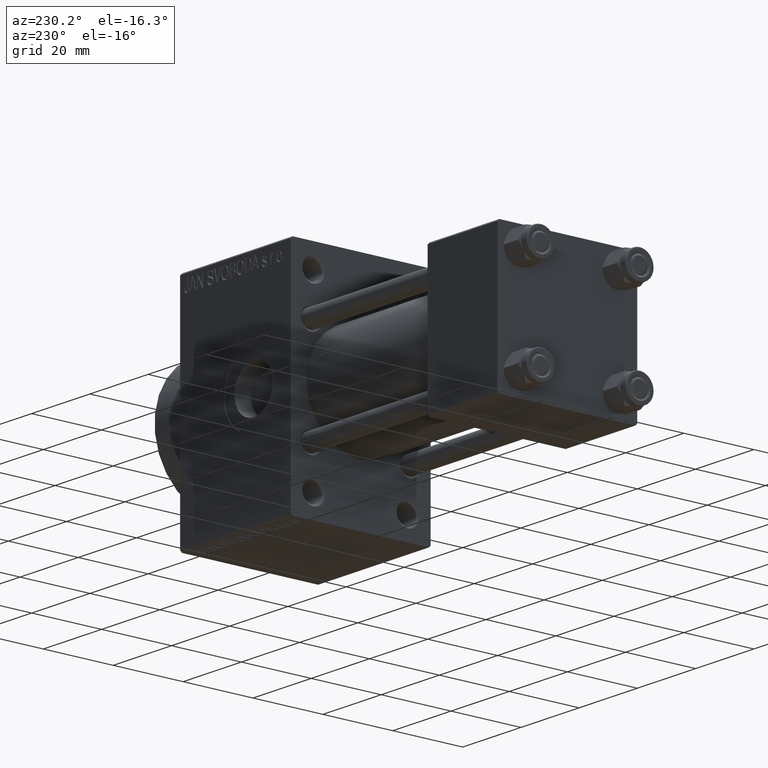
[diagram: clean part render]
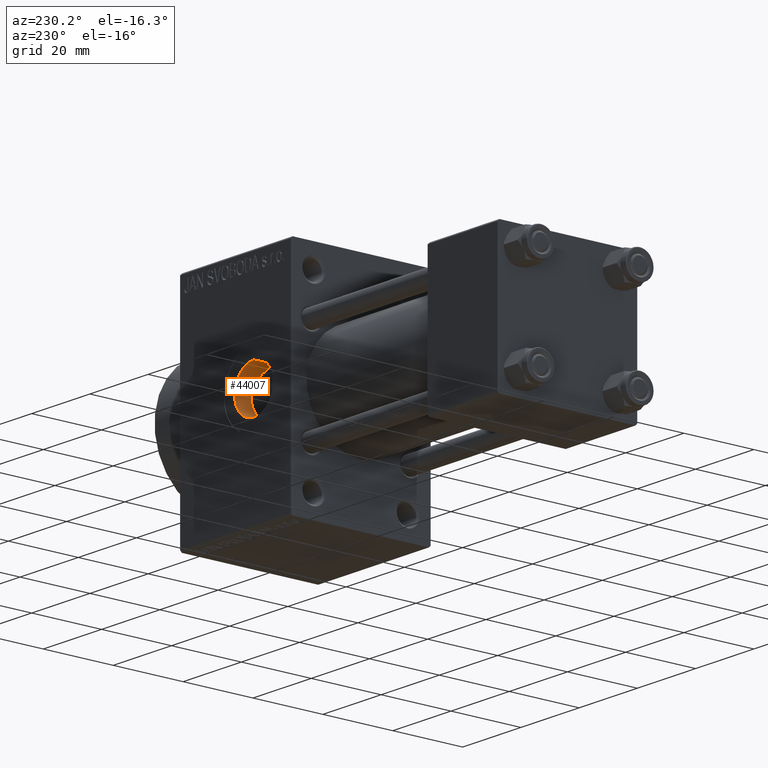
[diagram: same view with one face highlighted and labeled with its STEP entity id]
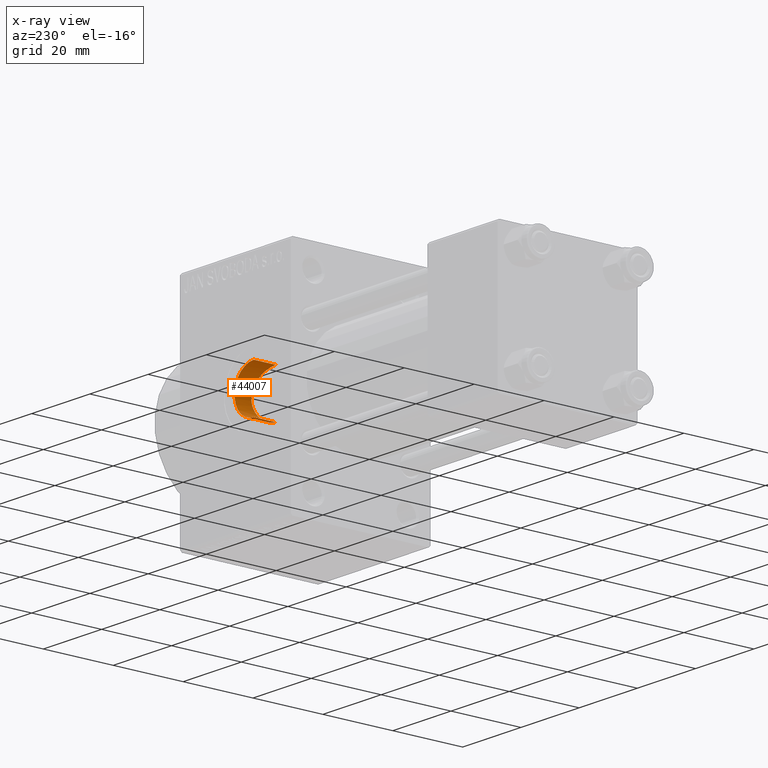
[diagram: x-ray of the same camera — body ghosted, the highlighted face saturated]
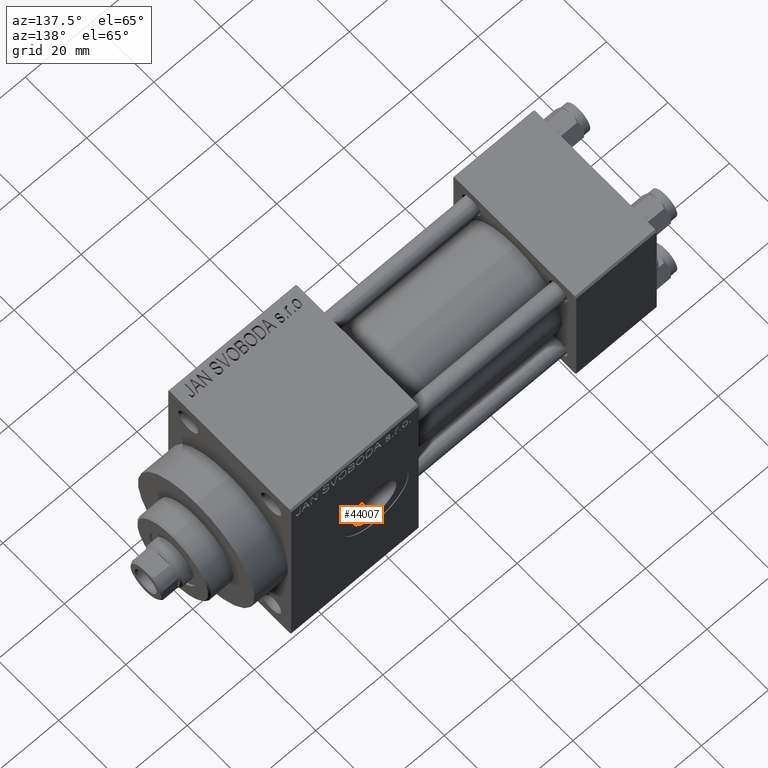
[diagram: same view with one face highlighted and labeled with its STEP entity id]
A machine part, auxiliary view. The second image highlights one B-rep face of the part: STEP entity #44007.
The next image is the same camera in x-ray: the body ghosted, the highlighted face saturated — about 0% of this face is hidden behind the body in this view.
A second angle (auxiliary view) of the same face is appended — the face is thin or edge-on in the first view.
In plain terms, the highlighted cylindrical surface (edge-blend (fillet) strip) has radius 6.58 mm, axis along (0, 1, 0).
Its self-contained STEP definition (entity closure, byte-faithful):
#2212 = CARTESIAN_POINT ( 'NONE',  ( 89.90496100315004924, 14.71561861235558055, 2.934527236680509965 ) ) ;
#2631 = CARTESIAN_POINT ( 'NONE',  ( 84.00000000000001421, 13.47974777212020747, 6.580000000001541061 ) ) ;
#2679 = CARTESIAN_POINT ( 'NONE',  ( 90.58012121813143835, 15.00005317434620622, -0.2142933741436109929 ) ) ;
#2910 = CARTESIAN_POINT ( 'NONE',  ( 89.70288243394014671, 14.63479585642867598, 3.310293569520521562 ) ) ;
#3144 = CARTESIAN_POINT ( 'NONE',  ( 88.94767122397709613, 14.35626376569894980, -4.358576204425606448 ) ) ;
#4795 = CARTESIAN_POINT ( 'NONE',  ( 84.00000000000000000, 19.80000000000000071, -6.580000000001541061 ) ) ;
#6013 = CARTESIAN_POINT ( 'NONE',  ( 86.92351769146507934, 13.79190775013002401, -5.898758844509866428 ) ) ;
#6247 = CARTESIAN_POINT ( 'NONE',  ( 90.35400523561561670, 14.90213545262838934, 1.723442878131194567 ) ) ;
#6712 = CARTESIAN_POINT ( 'NONE',  ( 89.22296890531409019, 14.45456171034981629, -4.024795089579184193 ) ) ;
#7125 = VECTOR ( 'NONE', #9628, 1000.000000000000000 ) ;
#7596 = VERTEX_POINT ( 'NONE', #26524 ) ;
#7741 = ORIENTED_EDGE ( 'NONE', *, *, #13700, .T. ) ;
#9593 = CARTESIAN_POINT ( 'NONE',  ( 90.57975445926895475, 14.99989228947896258, 0.4396576369082871860 ) ) ;
#9628 = DIRECTION ( 'NONE',  ( -0.000000000000000000, 1.000000000000000000, -0.000000000000000000 ) ) ;
#10066 = CARTESIAN_POINT ( 'NONE',  ( 84.87316574373073763, 13.50139811867472694, 6.536143893247988501 ) ) ;
#10647 = VERTEX_POINT ( 'NONE', #15269 ) ;
#11207 = ORIENTED_EDGE ( 'NONE', *, *, #39733, .F. ) ;
#12103 = VECTOR ( 'NONE', #13874, 1000.000000000000000 ) ;
#12939 = DIRECTION ( 'NONE',  ( 0.000000000000000000, 1.000000000000000000, 0.000000000000000000 ) ) ;
#13172 = CARTESIAN_POINT ( 'NONE',  ( 90.15299919069009604, 14.81746657544780987, 2.341560291187981591 ) ) ;
#13638 = CARTESIAN_POINT ( 'NONE',  ( 85.72738229337633697, 13.58322368116233925, -6.364371117436304459 ) ) ;
#13700 = EDGE_CURVE ( 'NONE', #7596, #27573, #28994, .T. ) ;
#13874 = DIRECTION ( 'NONE',  ( -0.000000000000000000, 1.000000000000000000, -0.000000000000000000 ) ) ;
#13882 = DIRECTION ( 'NONE',  ( -0.000000000000000000, 1.000000000000000000, -0.000000000000000000 ) ) ;
#14096 = CARTESIAN_POINT ( 'NONE',  ( 84.00000000000000000, 13.47974777212020570, -6.580000000001541061 ) ) ;
#15269 = CARTESIAN_POINT ( 'NONE',  ( 84.00000000000000000, 13.47974777212020570, -6.580000000001541061 ) ) ;
#16727 = CARTESIAN_POINT ( 'NONE',  ( 90.56927314805744800, 14.99528481447028838, -0.4348723903636226851 ) ) ;
#16961 = CARTESIAN_POINT ( 'NONE',  ( 84.86672476049650982, 13.50078989524231510, -6.537419788989380365 ) ) ;
#17420 = CARTESIAN_POINT ( 'NONE',  ( 90.40804349032906373, 14.92531832247587431, 1.510180672733651086 ) ) ;
#17423 = LINE ( 'NONE', #28833, #12103 ) ;
#17657 = CARTESIAN_POINT ( 'NONE',  ( 88.34571810031602013, 14.16206893639012421, 4.945350623308212512 ) ) ;
#17668 = CYLINDRICAL_SURFACE ( 'NONE', #46250, 6.580000000001541061 ) ;
#20516 = CARTESIAN_POINT ( 'NONE',  ( 87.30108931628336677, 13.87684958374441280, -5.696061878518563049 ) ) ;
#20747 = CARTESIAN_POINT ( 'NONE',  ( 88.50269527074252096, 14.21118671985590609, 4.802809199701820297 ) ) ;
#20979 = CARTESIAN_POINT ( 'NONE',  ( 84.00000000000001421, 13.47974777212020747, 6.580000000001541061 ) ) ;
#21207 = CARTESIAN_POINT ( 'NONE',  ( 89.22411835450492390, 14.45495742940372175, 4.023617649563258070 ) ) ;
#24091 = CARTESIAN_POINT ( 'NONE',  ( 88.01682385340173198, 14.06462955860938990, 5.216021925338526266 ) ) ;
#24570 = CARTESIAN_POINT ( 'NONE',  ( 84.00000000000000000, -18.61105048083429736, 0.000000000000000000 ) ) ;
#25018 = CARTESIAN_POINT ( 'NONE',  ( 90.52575784058851127, 14.97627231213753163, -0.8711763860932838499 ) ) ;
#26524 = CARTESIAN_POINT ( 'NONE',  ( 84.00000000000000000, 19.80000000000000071, 6.580000000001541061 ) ) ;
#27573 = VERTEX_POINT ( 'NONE', #4795 ) ;
#27668 = CARTESIAN_POINT ( 'NONE',  ( 89.90247971339006483, 14.71460193619355294, -2.940356773720275818 ) ) ;
#28371 = CARTESIAN_POINT ( 'NONE',  ( 84.44091709312753835, 13.47974777212020925, 6.580000000001541949 ) ) ;
#28833 = CARTESIAN_POINT ( 'NONE',  ( 84.00000000000000000, -18.61105048083429736, -6.580000000001541061 ) ) ;
#28994 = CIRCLE ( 'NONE', #32806, 6.580000000001541061 ) ;
#31250 = CARTESIAN_POINT ( 'NONE',  ( 90.23769844280084840, 14.85224310456066199, -2.139178080577716301 ) ) ;
#31717 = CARTESIAN_POINT ( 'NONE',  ( 85.72150176663824084, 13.58266914400359404, 6.365534311959137881 ) ) ;
#32177 = CARTESIAN_POINT ( 'NONE',  ( 84.43405175477785463, 13.47974777212021280, -6.580000000001541949 ) ) ;
#32756 = EDGE_CURVE ( 'NONE', #40737, #7596, #37066, .T. ) ;
#32806 = AXIS2_PLACEMENT_3D ( 'NONE', #41723, #12939, #38172 ) ;
#34080 = EDGE_LOOP ( 'NONE', ( #39566, #11207, #39593, #7741 ) ) ;
#35046 = CARTESIAN_POINT ( 'NONE',  ( 87.31096684123954788, 13.87618552960360319, 5.702370364628353450 ) ) ;
#35281 = CARTESIAN_POINT ( 'NONE',  ( 90.53660967087691347, 14.98081735429026473, 0.8707480482464713401 ) ) ;
#35292 = DIRECTION ( 'NONE',  ( 0.000000000000000000, 0.000000000000000000, 1.000000000000000000 ) ) ;
#35508 = CARTESIAN_POINT ( 'NONE',  ( 87.84399376657984249, 14.01607983476613484, 5.344707122219622519 ) ) ;
#35744 = CARTESIAN_POINT ( 'NONE',  ( 86.13878146178018369, 13.64286136601995914, -6.237365205957289049 ) ) ;
#37066 = LINE ( 'NONE', #40863, #7125 ) ;
#37849 = B_SPLINE_CURVE_WITH_KNOTS ( 'NONE', 3,
 ( #20979, #28371, #10066, #31717, #42893, #39325, #35046, #35508, #24091, #17657, #20747, #45771, #21207, #2910, #2212, #13172, #46008, #6247, #17420, #35281, #9593, #2679, #16727, #25018, #42425, #39559, #31250, #27668, #46478, #6712, #3144, #38636, #42189, #42660, #20516, #6013, #46242, #35744, #13638, #16961, #32177, #14096 ),
 .UNSPECIFIED., .F., .F.,
 ( 4, 2, 2, 2, 2, 2, 2, 2, 2, 2, 2, 2, 2, 2, 2, 2, 2, 2, 2, 2, 4 ),
 ( 1.422579022190208801E-17, 0.001302447285417714182, 0.002604894570835414053, 0.003907341856253113491, 0.004558565498961946946, 0.005209789141670780402, 0.006512236427088448180, 0.007814683712506115959, 0.008465907355214958088, 0.009117130997923801952, 0.01041957828334148621, 0.01107080192605032834, 0.01172202556875917047, 0.01302447285417686340, 0.01432692013959455633, 0.01562936742501224580, 0.01693181471042993699, 0.01758303835313878086, 0.01823426199584762819, 0.01953670928126531939, 0.02083915656668300712 ),
 .UNSPECIFIED. ) ;
#38172 = DIRECTION ( 'NONE',  ( 0.000000000000000000, 0.000000000000000000, 1.000000000000000000 ) ) ;
#38636 = CARTESIAN_POINT ( 'NONE',  ( 88.34654763100903097, 14.16034374859521350, -4.958241700615885428 ) ) ;
#39325 = CARTESIAN_POINT ( 'NONE',  ( 86.93549082565270680, 13.79016538881725396, 5.904597049045542612 ) ) ;
#39559 = CARTESIAN_POINT ( 'NONE',  ( 90.36499013257748913, 14.90673487989735158, -1.723694413480210130 ) ) ;
#39566 = ORIENTED_EDGE ( 'NONE', *, *, #45972, .F. ) ;
#39593 = ORIENTED_EDGE ( 'NONE', *, *, #32756, .T. ) ;
#39733 = EDGE_CURVE ( 'NONE', #40737, #10647, #37849, .T. ) ;
#40737 = VERTEX_POINT ( 'NONE', #2631 ) ;
#40863 = CARTESIAN_POINT ( 'NONE',  ( 84.00000000000000000, -18.61105048083429736, 6.580000000001541061 ) ) ;
#41723 = CARTESIAN_POINT ( 'NONE',  ( 84.00000000000000000, 19.80000000000000071, 0.000000000000000000 ) ) ;
#42189 = CARTESIAN_POINT ( 'NONE',  ( 88.01940850816879447, 14.06206651057332024, -5.227207620256651310 ) ) ;
#42425 = CARTESIAN_POINT ( 'NONE',  ( 90.49330976722114883, 14.96212495205842785, -1.086408634742738633 ) ) ;
#42660 = CARTESIAN_POINT ( 'NONE',  ( 87.48650847152742926, 13.92228281461338746, -5.584478018864869497 ) ) ;
#42893 = CARTESIAN_POINT ( 'NONE',  ( 86.14192174141415137, 13.64329079840288728, 6.236468868898946916 ) ) ;
#44007 = ADVANCED_FACE ( 'NONE', ( #46487 ), #17668, .F. ) ;
#45771 = CARTESIAN_POINT ( 'NONE',  ( 88.95193023626919171, 14.35775282579782619, 4.353636477095024659 ) ) ;
#45972 = EDGE_CURVE ( 'NONE', #10647, #27573, #17423, .T. ) ;
#46008 = CARTESIAN_POINT ( 'NONE',  ( 90.22642608447620205, 14.84818643133560201, 2.138984829999148296 ) ) ;
#46242 = CARTESIAN_POINT ( 'NONE',  ( 86.73052902550121246, 13.75215651404846895, -5.990516584932040978 ) ) ;
#46250 = AXIS2_PLACEMENT_3D ( 'NONE', #24570, #13882, #35292 ) ;
#46478 = CARTESIAN_POINT ( 'NONE',  ( 89.69892933739788532, 14.63327528768209262, -3.316712846528059977 ) ) ;
#46487 = FACE_OUTER_BOUND ( 'NONE', #34080, .T. ) ;